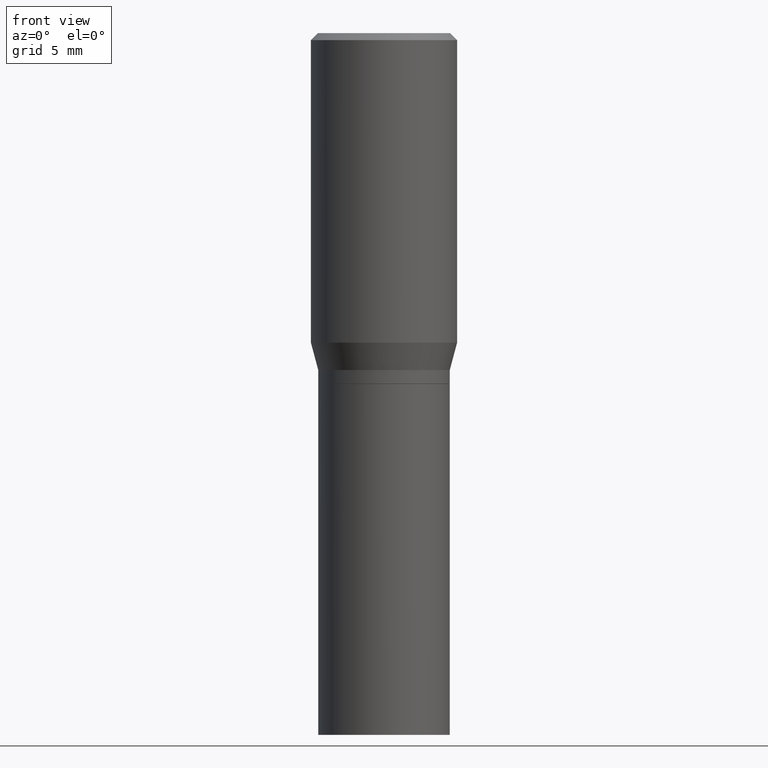
[diagram: clean part render]
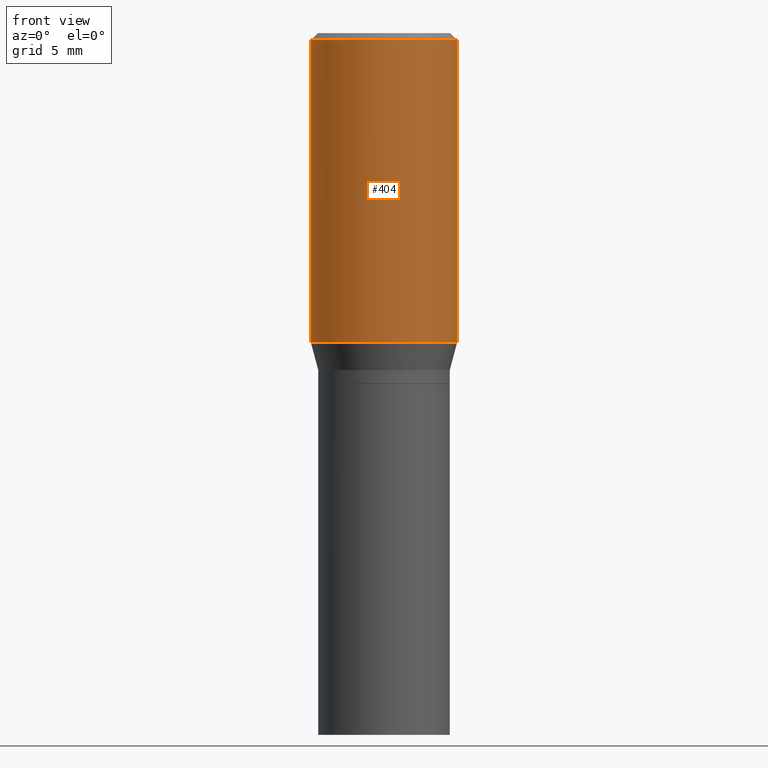
[diagram: same view with one face highlighted and labeled with its STEP entity id]
A machine part, front view. The second image highlights one B-rep face of the part: STEP entity #404.
In plain terms, the highlighted cylindrical surface (partial cylindrical patch) has radius 3.9688 mm, axis along (-0, 0, 1).
Its self-contained STEP definition (entity closure, byte-faithful):
#8 = DIRECTION ( 'NONE',  ( -2.445468806185136597E-29, 3.491481338843145583E-15, 1.000000000000000000 ) ) ;
#19 = VERTEX_POINT ( 'NONE', #314 ) ;
#25 = VERTEX_POINT ( 'NONE', #46 ) ;
#32 = ORIENTED_EDGE ( 'NONE', *, *, #159, .T. ) ;
#40 = CARTESIAN_POINT ( 'NONE',  ( 1.617906033966727374E-29, -2.309941026975789734E-15, -0.6615934048615470520 ) ) ;
#46 = CARTESIAN_POINT ( 'NONE',  ( -0.1562500000000000000, -7.093359890406177996E-17, -0.01499999999999999944 ) ) ;
#47 = EDGE_CURVE ( 'NONE', #25, #175, #156, .T. ) ;
#58 = EDGE_LOOP ( 'NONE', ( #421, #32, #322, #141 ) ) ;
#88 = VECTOR ( 'NONE', #337, 39.37007874015748143 ) ;
#105 = AXIS2_PLACEMENT_3D ( 'NONE', #40, #8, #293 ) ;
#123 = CARTESIAN_POINT ( 'NONE',  ( 0.1562500000000000000, -1.091087918388479174E-15, 7.619026212181150377E-30 ) ) ;
#141 = ORIENTED_EDGE ( 'NONE', *, *, #47, .F. ) ;
#143 = VECTOR ( 'NONE', #225, 39.37007874015748143 ) ;
#156 = CIRCLE ( 'NONE', #330, 0.1562500000000000000 ) ;
#159 = EDGE_CURVE ( 'NONE', #413, #19, #311, .T. ) ;
#166 = CARTESIAN_POINT ( 'NONE',  ( -0.1562500000000000000, -1.199718002350633194E-15, -0.6615934048615470520 ) ) ;
#175 = VERTEX_POINT ( 'NONE', #183 ) ;
#183 = CARTESIAN_POINT ( 'NONE',  ( 0.1562500000000000000, -1.143460138471126253E-15, -0.01499999999999999944 ) ) ;
#186 = CARTESIAN_POINT ( 'NONE',  ( 3.668203209277705088E-31, -5.237222008264718399E-17, -0.01499999999999999944 ) ) ;
#193 = CARTESIAN_POINT ( 'NONE',  ( -0.1562500000000000000, 1.110223024625156540E-15, -7.685836078523291160E-30 ) ) ;
#225 = DIRECTION ( 'NONE',  ( -2.445468806185136877E-29, 3.491481338843145188E-15, 1.000000000000000000 ) ) ;
#227 = DIRECTION ( 'NONE',  ( -2.445468806185136597E-29, 3.491481338843145583E-15, 1.000000000000000000 ) ) ;
#253 = EDGE_CURVE ( 'NONE', #19, #175, #297, .T. ) ;
#267 = CYLINDRICAL_SURFACE ( 'NONE', #296, 0.1562500000000000000 ) ;
#289 = DIRECTION ( 'NONE',  ( -2.445468806185136597E-29, 3.491481338843145583E-15, 1.000000000000000000 ) ) ;
#293 = DIRECTION ( 'NONE',  ( 1.000000000000000000, -6.982962677686265133E-15, 0.000000000000000000 ) ) ;
#296 = AXIS2_PLACEMENT_3D ( 'NONE', #340, #227, #373 ) ;
#297 = LINE ( 'NONE', #123, #143 ) ;
#311 = CIRCLE ( 'NONE', #105, 0.1562500000000000000 ) ;
#314 = CARTESIAN_POINT ( 'NONE',  ( 0.1562500000000000000, -3.401028945364269302E-15, -0.6615934048615470520 ) ) ;
#322 = ORIENTED_EDGE ( 'NONE', *, *, #253, .T. ) ;
#328 = DIRECTION ( 'NONE',  ( 1.000000000000000000, -6.982962677686266711E-15, 0.000000000000000000 ) ) ;
#330 = AXIS2_PLACEMENT_3D ( 'NONE', #186, #289, #328 ) ;
#337 = DIRECTION ( 'NONE',  ( -2.445468806185136877E-29, 3.491481338843145188E-15, 1.000000000000000000 ) ) ;
#340 = CARTESIAN_POINT ( 'NONE',  ( 0.000000000000000000, 0.000000000000000000, 0.000000000000000000 ) ) ;
#357 = EDGE_CURVE ( 'NONE', #413, #25, #406, .T. ) ;
#373 = DIRECTION ( 'NONE',  ( 1.000000000000000000, -6.982962677686266711E-15, 4.876176775795936353E-29 ) ) ;
#379 = FACE_OUTER_BOUND ( 'NONE', #58, .T. ) ;
#404 = ADVANCED_FACE ( 'NONE', ( #379 ), #267, .T. ) ;
#406 = LINE ( 'NONE', #193, #88 ) ;
#413 = VERTEX_POINT ( 'NONE', #166 ) ;
#421 = ORIENTED_EDGE ( 'NONE', *, *, #357, .F. ) ;